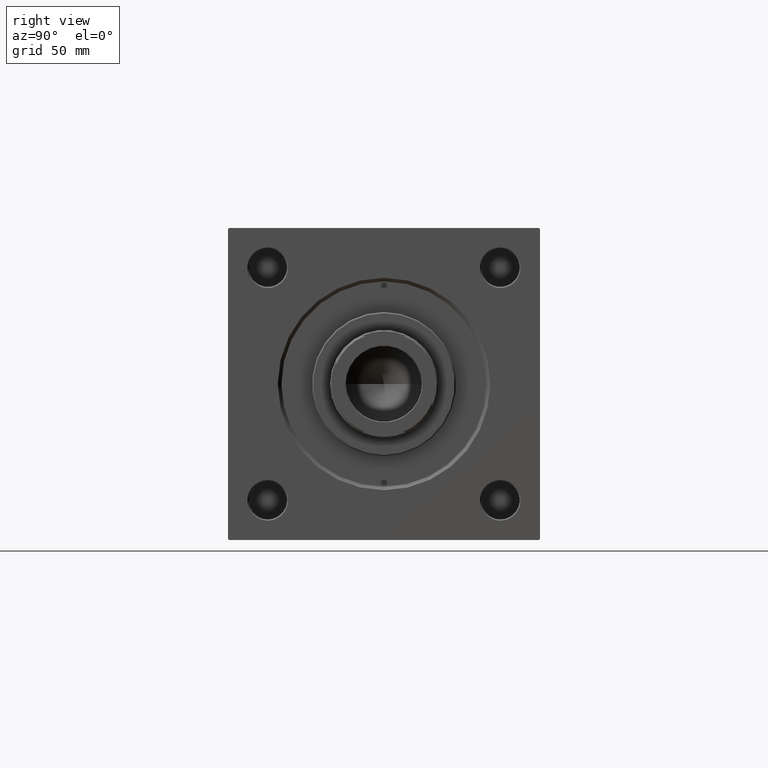
[diagram: clean part render]
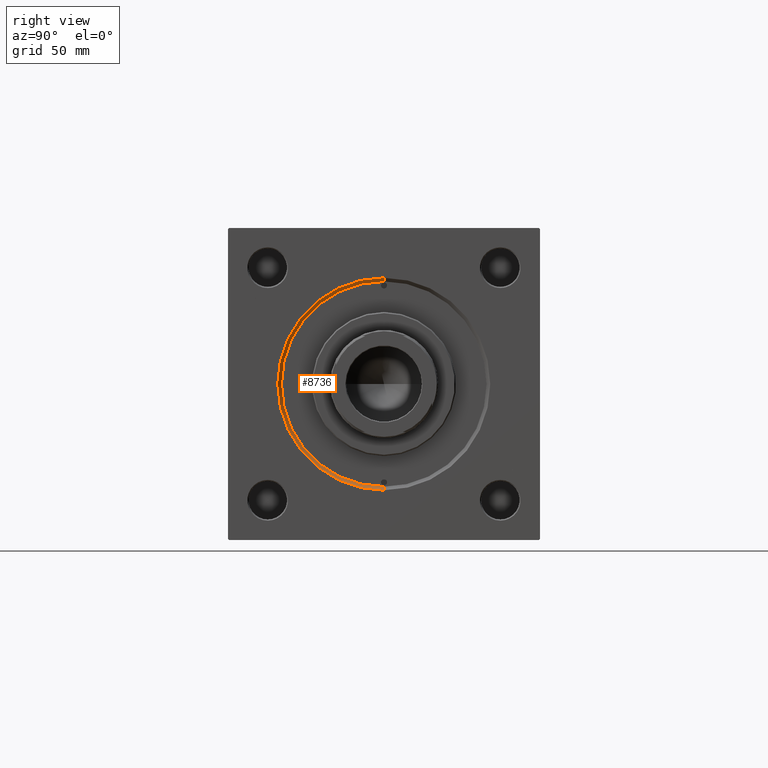
[diagram: same view with one face highlighted and labeled with its STEP entity id]
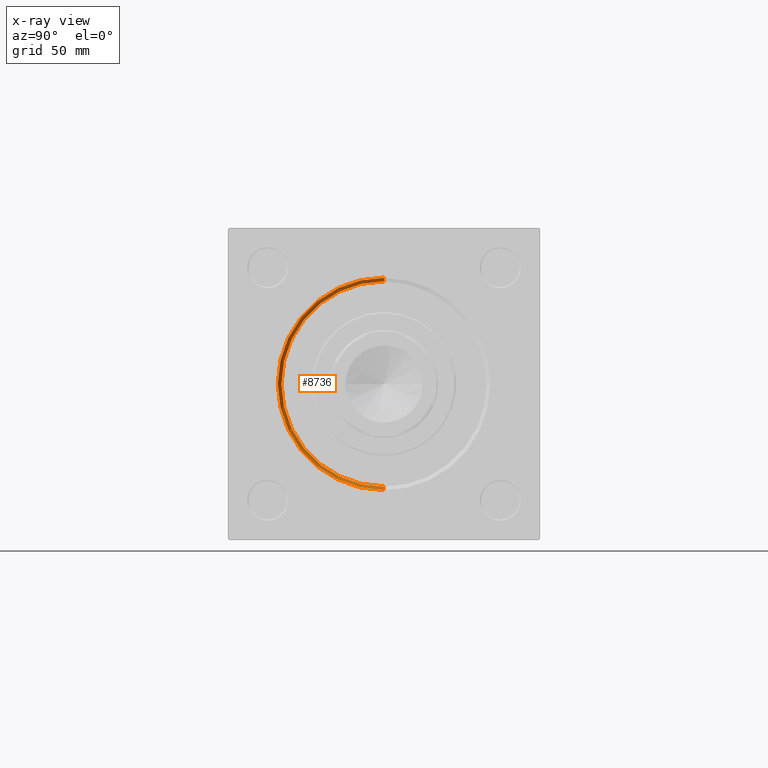
[diagram: x-ray of the same camera — body ghosted, the highlighted face saturated]
A machine part, right view. The second image highlights one B-rep face of the part: STEP entity #8736.
The next image is the same camera in x-ray: the body ghosted, the highlighted face saturated — about 0% of this face is hidden behind the body in this view.
In plain terms, the highlighted conical surface has half-angle 45 deg.
Its self-contained STEP definition (entity closure, byte-faithful):
#819 = ORIENTED_EDGE ( 'NONE', *, *, #39683, .F. ) ;
#1436 = ORIENTED_EDGE ( 'NONE', *, *, #16783, .F. ) ;
#2064 = CARTESIAN_POINT ( 'NONE',  ( 186.5000000000000284, 0.000000000000000000, 0.000000000000000000 ) ) ;
#5397 = AXIS2_PLACEMENT_3D ( 'NONE', #2064, #37758, #49316 ) ;
#6156 = DIRECTION ( 'NONE',  ( 1.000000000000000000, 0.000000000000000000, 0.000000000000000000 ) ) ;
#6167 = VERTEX_POINT ( 'NONE', #14312 ) ;
#6194 = CIRCLE ( 'NONE', #5397, 42.75000000000000000 ) ;
#6800 = LINE ( 'NONE', #49697, #16147 ) ;
#7200 = CONICAL_SURFACE ( 'NONE', #34249, 42.75000000000000000, 0.7853981633974506105 ) ;
#8327 = CARTESIAN_POINT ( 'NONE',  ( 186.5000000000000284, 0.000000000000000000, -42.75000000000000000 ) ) ;
#8736 = ADVANCED_FACE ( 'NONE', ( #10039 ), #7200, .F. ) ;
#9069 = CARTESIAN_POINT ( 'NONE',  ( 188.0000000000000000, 0.000000000000000000, 0.000000000000000000 ) ) ;
#10039 = FACE_OUTER_BOUND ( 'NONE', #43668, .T. ) ;
#12224 = CARTESIAN_POINT ( 'NONE',  ( 188.0000000000000000, 0.000000000000000000, -44.24999999999998579 ) ) ;
#12426 = DIRECTION ( 'NONE',  ( -1.000000000000000000, 0.000000000000000000, -0.000000000000000000 ) ) ;
#12930 = DIRECTION ( 'NONE',  ( 0.000000000000000000, 0.000000000000000000, 1.000000000000000000 ) ) ;
#14312 = CARTESIAN_POINT ( 'NONE',  ( 188.0000000000000000, 5.419062086227035828E-15, 44.24999999999998579 ) ) ;
#14964 = ORIENTED_EDGE ( 'NONE', *, *, #42461, .T. ) ;
#16147 = VECTOR ( 'NONE', #30183, 1000.000000000000114 ) ;
#16783 = EDGE_CURVE ( 'NONE', #45162, #6167, #31952, .T. ) ;
#18581 = ORIENTED_EDGE ( 'NONE', *, *, #41427, .F. ) ;
#24501 = LINE ( 'NONE', #8327, #37474 ) ;
#25685 = DIRECTION ( 'NONE',  ( 0.000000000000000000, 0.000000000000000000, -1.000000000000000000 ) ) ;
#25985 = CARTESIAN_POINT ( 'NONE',  ( 186.5000000000000284, 5.235365066354935472E-15, 42.75000000000000000 ) ) ;
#29033 = CARTESIAN_POINT ( 'NONE',  ( 186.5000000000000284, 0.000000000000000000, 0.000000000000000000 ) ) ;
#30183 = DIRECTION ( 'NONE',  ( 0.7071067811865459074, 8.659560562354953812E-17, 0.7071067811865491270 ) ) ;
#31952 = CIRCLE ( 'NONE', #38510, 44.24999999999998579 ) ;
#31956 = DIRECTION ( 'NONE',  ( 0.7071067811865459074, 0.000000000000000000, -0.7071067811865491270 ) ) ;
#33826 = CARTESIAN_POINT ( 'NONE',  ( 186.5000000000000284, 0.000000000000000000, -42.75000000000000000 ) ) ;
#34249 = AXIS2_PLACEMENT_3D ( 'NONE', #29033, #6156, #25685 ) ;
#37474 = VECTOR ( 'NONE', #31956, 1000.000000000000114 ) ;
#37758 = DIRECTION ( 'NONE',  ( 1.000000000000000000, 0.000000000000000000, 0.000000000000000000 ) ) ;
#38510 = AXIS2_PLACEMENT_3D ( 'NONE', #9069, #12426, #12930 ) ;
#39683 = EDGE_CURVE ( 'NONE', #46321, #46879, #6194, .T. ) ;
#41427 = EDGE_CURVE ( 'NONE', #46879, #45162, #24501, .T. ) ;
#42461 = EDGE_CURVE ( 'NONE', #46321, #6167, #6800, .T. ) ;
#43668 = EDGE_LOOP ( 'NONE', ( #819, #14964, #1436, #18581 ) ) ;
#45162 = VERTEX_POINT ( 'NONE', #12224 ) ;
#46321 = VERTEX_POINT ( 'NONE', #25985 ) ;
#46879 = VERTEX_POINT ( 'NONE', #33826 ) ;
#49316 = DIRECTION ( 'NONE',  ( 0.000000000000000000, 0.000000000000000000, 1.000000000000000000 ) ) ;
#49697 = CARTESIAN_POINT ( 'NONE',  ( 186.5000000000000284, 5.235365066354935472E-15, 42.75000000000000000 ) ) ;